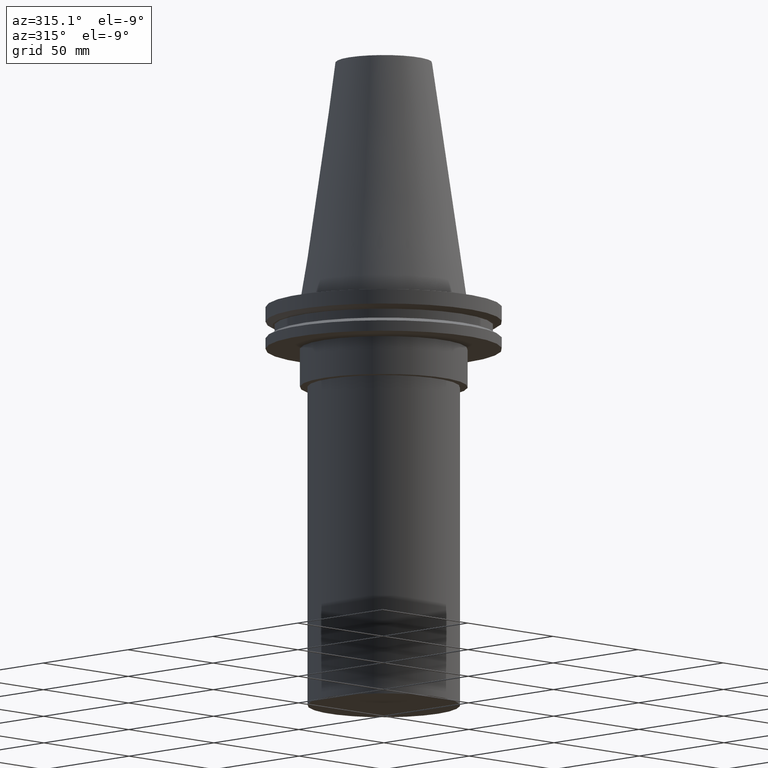
[diagram: clean part render]
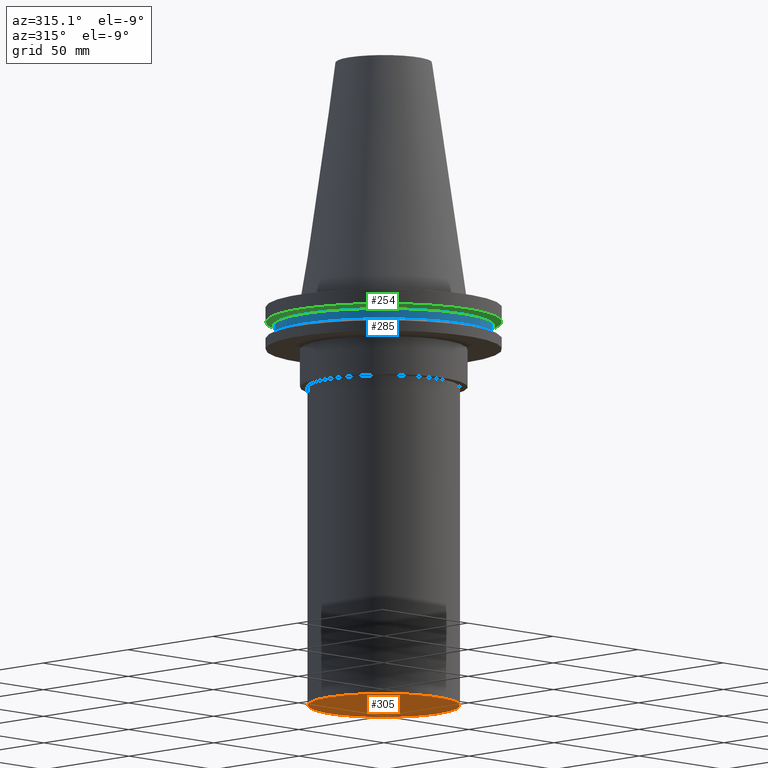
[diagram: same view with three faces highlighted in distinct colors, each labeled with its STEP entity id]
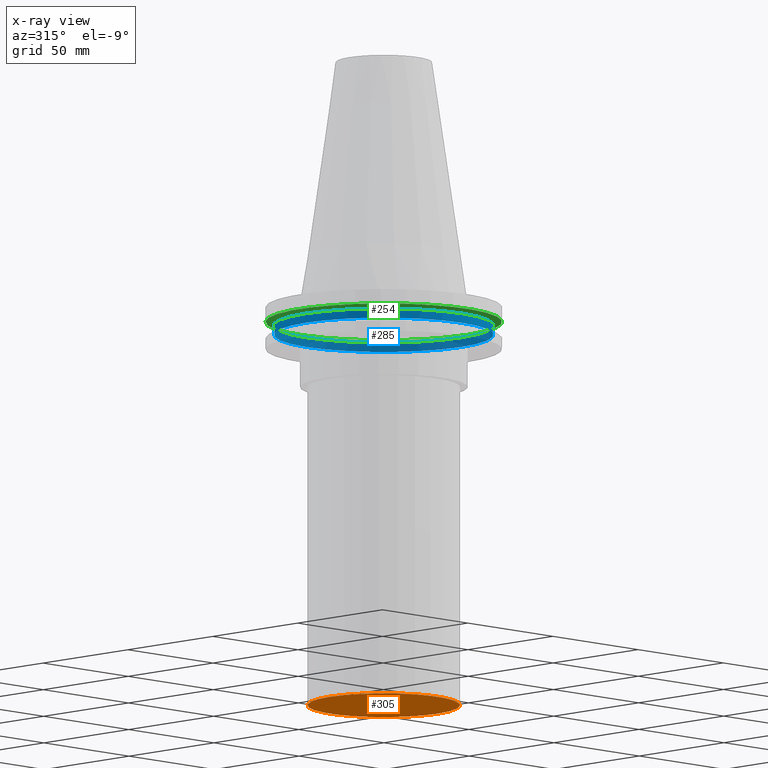
[diagram: x-ray of the same camera — body ghosted, the three highlighted faces saturated]
A machine part, auxiliary view with three faces highlighted in distinct colors.
The next image is the same camera in x-ray (body ghosted, the three faces saturated) — at least one of them is partly hidden behind the body in this view.
Their STEP definitions:

[orange] entity #305 — the highlighted planar face has unit normal (0, -0, 1).
#3 = EDGE_CURVE ( 'NONE', #378, #378, #23, .T. ) ;
#23 = CIRCLE ( 'NONE', #71, 31.75000000000000000 ) ;
#41 = CARTESIAN_POINT ( 'NONE',  ( 0.000000000000000000, 0.000000000000000000, -169.0000000000000000 ) ) ;
#71 = AXIS2_PLACEMENT_3D ( 'NONE', #41, #126, #331 ) ;
#74 = DIRECTION ( 'NONE',  ( 1.000000000000000000, 0.000000000000000000, 0.000000000000000000 ) ) ;
#126 = DIRECTION ( 'NONE',  ( -0.000000000000000000, -0.000000000000000000, 1.000000000000000000 ) ) ;
#129 = PLANE ( 'NONE',  #282 ) ;
#184 = ORIENTED_EDGE ( 'NONE', *, *, #3, .F. ) ;
#196 = FACE_OUTER_BOUND ( 'NONE', #338, .T. ) ;
#229 = CARTESIAN_POINT ( 'NONE',  ( 31.75000000000000000, 0.000000000000000000, -169.0000000000000000 ) ) ;
#230 = CARTESIAN_POINT ( 'NONE',  ( 0.000000000000000000, 31.75000000000000000, -169.0000000000000000 ) ) ;
#264 = DIRECTION ( 'NONE',  ( 0.000000000000000000, -0.000000000000000000, 1.000000000000000000 ) ) ;
#282 = AXIS2_PLACEMENT_3D ( 'NONE', #230, #264, #74 ) ;
#305 = ADVANCED_FACE ( 'NONE', ( #196 ), #129, .F. ) ;
#331 = DIRECTION ( 'NONE',  ( 1.000000000000000000, 0.000000000000000000, 0.000000000000000000 ) ) ;
#338 = EDGE_LOOP ( 'NONE', ( #184 ) ) ;
#378 = VERTEX_POINT ( 'NONE', #229 ) ;

[blue] entity #285 — the highlighted cylindrical surface (bore or boss wall) has radius 45.645 mm, axis along (-0, -0, 1).
#10 = CIRCLE ( 'NONE', #30, 45.64500000000000313 ) ;
#11 = VERTEX_POINT ( 'NONE', #219 ) ;
#13 = FACE_OUTER_BOUND ( 'NONE', #62, .T. ) ;
#28 = EDGE_CURVE ( 'NONE', #11, #11, #10, .T. ) ;
#30 = AXIS2_PLACEMENT_3D ( 'NONE', #235, #303, #142 ) ;
#60 = CIRCLE ( 'NONE', #296, 45.64500000000000313 ) ;
#62 = EDGE_LOOP ( 'NONE', ( #150 ) ) ;
#72 = CARTESIAN_POINT ( 'NONE',  ( 0.000000000000000000, 0.000000000000000000, -9.204999999999991189 ) ) ;
#99 = DIRECTION ( 'NONE',  ( -0.000000000000000000, -0.000000000000000000, 1.000000000000000000 ) ) ;
#125 = CARTESIAN_POINT ( 'NONE',  ( 45.64500000000000313, 0.000000000000000000, -9.204999999999991189 ) ) ;
#133 = DIRECTION ( 'NONE',  ( -0.000000000000000000, -0.000000000000000000, 1.000000000000000000 ) ) ;
#142 = DIRECTION ( 'NONE',  ( 1.000000000000000000, 0.000000000000000000, 0.000000000000000000 ) ) ;
#150 = ORIENTED_EDGE ( 'NONE', *, *, #280, .F. ) ;
#158 = CYLINDRICAL_SURFACE ( 'NONE', #159, 45.64500000000000313 ) ;
#159 = AXIS2_PLACEMENT_3D ( 'NONE', #346, #133, #321 ) ;
#162 = DIRECTION ( 'NONE',  ( 1.000000000000000000, 0.000000000000000000, 0.000000000000000000 ) ) ;
#187 = ORIENTED_EDGE ( 'NONE', *, *, #28, .T. ) ;
#219 = CARTESIAN_POINT ( 'NONE',  ( 45.64500000000000313, 0.000000000000000000, -13.05499999999999794 ) ) ;
#226 = FACE_OUTER_BOUND ( 'NONE', #394, .T. ) ;
#235 = CARTESIAN_POINT ( 'NONE',  ( 0.000000000000000000, 0.000000000000000000, -13.05499999999999794 ) ) ;
#280 = EDGE_CURVE ( 'NONE', #293, #293, #60, .T. ) ;
#285 = ADVANCED_FACE ( 'NONE', ( #13, #226 ), #158, .T. ) ;
#293 = VERTEX_POINT ( 'NONE', #125 ) ;
#296 = AXIS2_PLACEMENT_3D ( 'NONE', #72, #99, #162 ) ;
#303 = DIRECTION ( 'NONE',  ( -0.000000000000000000, -0.000000000000000000, 1.000000000000000000 ) ) ;
#321 = DIRECTION ( 'NONE',  ( 1.000000000000000000, 0.000000000000000000, 0.000000000000000000 ) ) ;
#346 = CARTESIAN_POINT ( 'NONE',  ( 0.000000000000000000, 0.000000000000000000, 101.5999999999999943 ) ) ;
#394 = EDGE_LOOP ( 'NONE', ( #187 ) ) ;

[green] entity #254 — the highlighted conical surface has half-angle 60 deg.
#7 = CARTESIAN_POINT ( 'NONE',  ( 49.21500000000000341, 0.000000000000000000, -7.602389855251287187 ) ) ;
#8 = EDGE_LOOP ( 'NONE', ( #249 ) ) ;
#16 = VERTEX_POINT ( 'NONE', #46 ) ;
#35 = DIRECTION ( 'NONE',  ( -0.000000000000000000, -0.000000000000000000, 1.000000000000000000 ) ) ;
#46 = CARTESIAN_POINT ( 'NONE',  ( 46.43919780457007818, 0.000000000000000000, -9.204999999999991189 ) ) ;
#59 = EDGE_LOOP ( 'NONE', ( #69 ) ) ;
#65 = FACE_BOUND ( 'NONE', #8, .T. ) ;
#68 = DIRECTION ( 'NONE',  ( 1.000000000000000000, 0.000000000000000000, 0.000000000000000000 ) ) ;
#69 = ORIENTED_EDGE ( 'NONE', *, *, #113, .F. ) ;
#77 = AXIS2_PLACEMENT_3D ( 'NONE', #270, #242, #106 ) ;
#106 = DIRECTION ( 'NONE',  ( 1.000000000000000000, 0.000000000000000000, 0.000000000000000000 ) ) ;
#113 = EDGE_CURVE ( 'NONE', #286, #286, #228, .T. ) ;
#114 = AXIS2_PLACEMENT_3D ( 'NONE', #312, #35, #68 ) ;
#135 = EDGE_CURVE ( 'NONE', #16, #16, #201, .T. ) ;
#189 = FACE_OUTER_BOUND ( 'NONE', #59, .T. ) ;
#200 = CONICAL_SURFACE ( 'NONE', #114, 46.43919780457007818, 1.047197551196575205 ) ;
#201 = CIRCLE ( 'NONE', #233, 46.43919780457007818 ) ;
#212 = CARTESIAN_POINT ( 'NONE',  ( 0.000000000000000000, 0.000000000000000000, -9.204999999999991189 ) ) ;
#228 = CIRCLE ( 'NONE', #77, 49.21500000000000341 ) ;
#233 = AXIS2_PLACEMENT_3D ( 'NONE', #212, #279, #336 ) ;
#242 = DIRECTION ( 'NONE',  ( -0.000000000000000000, -0.000000000000000000, 1.000000000000000000 ) ) ;
#249 = ORIENTED_EDGE ( 'NONE', *, *, #135, .T. ) ;
#254 = ADVANCED_FACE ( 'NONE', ( #189, #65 ), #200, .T. ) ;
#270 = CARTESIAN_POINT ( 'NONE',  ( 0.000000000000000000, 0.000000000000000000, -7.602389855251287187 ) ) ;
#279 = DIRECTION ( 'NONE',  ( -0.000000000000000000, -0.000000000000000000, 1.000000000000000000 ) ) ;
#286 = VERTEX_POINT ( 'NONE', #7 ) ;
#312 = CARTESIAN_POINT ( 'NONE',  ( 0.000000000000000000, 0.000000000000000000, -9.204999999999991189 ) ) ;
#336 = DIRECTION ( 'NONE',  ( 1.000000000000000000, 0.000000000000000000, 0.000000000000000000 ) ) ;